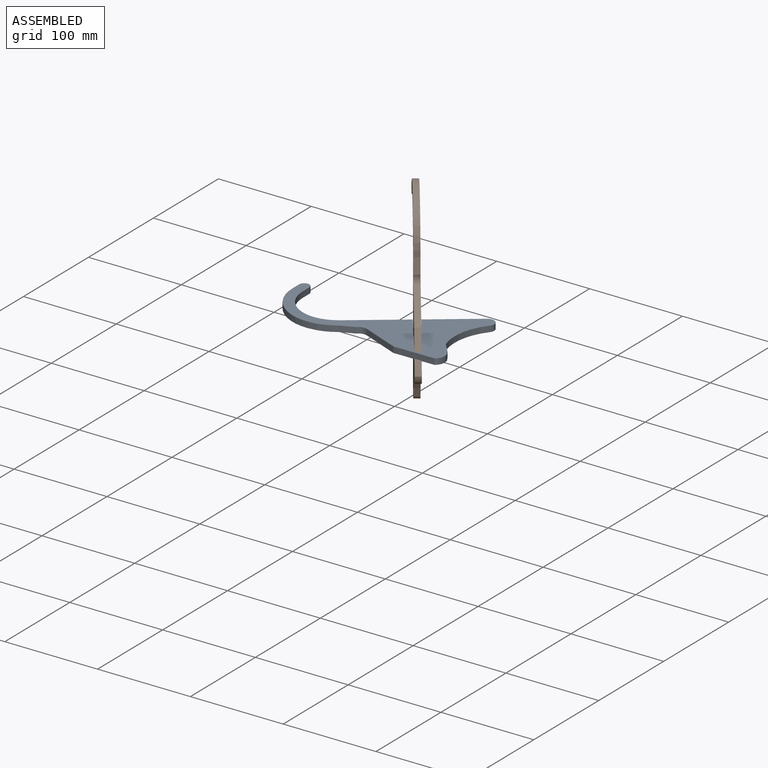
[diagram: assembled view]
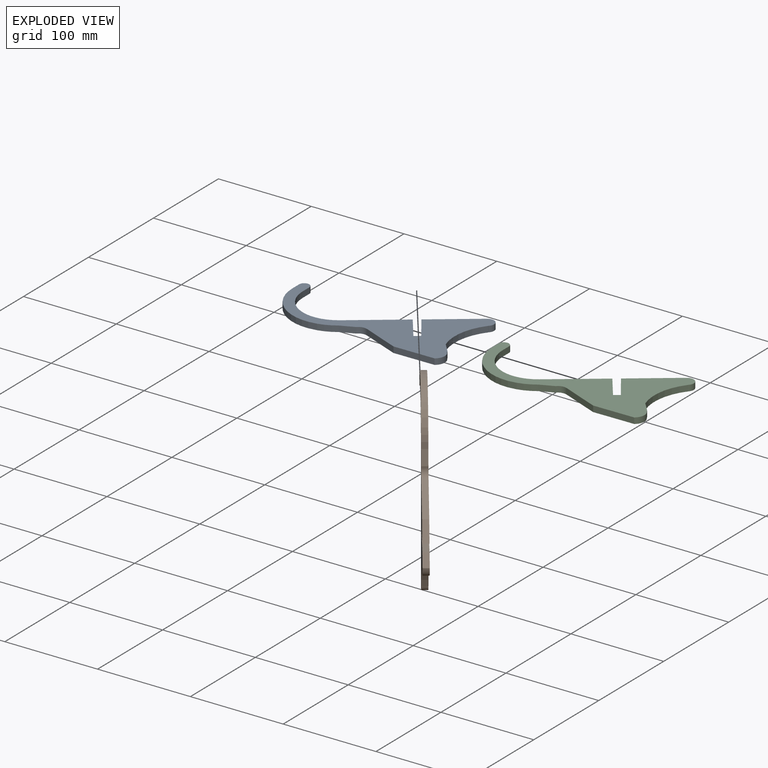
[diagram: exploded view]
GUIDED TOUR — MATED ASSEMBLY (Onshape document 1a7ba2416c0e4d4688dbf199, AutoMate assembly 1a7ba2416c0e4d4688dbf199_3245b46eb1ed6a3dad6c0e9d_c893f42f011314c6f7e1888d_default)

This assembly has 3 components, labeled P0..P2 below (a component is one placed occurrence of a part; the same part can appear more than once), held together by 1 mate. A mate is a constraint between two components; its type names the relative motion it leaves free:
  FASTENED — locks the two components together rigidly (no relative motion).
Axis/direction vectors are unit vectors and 'through' points are millimeter coordinates, both in the assembly's world frame.

MATES
  1. FASTENED "Fastened 2": P1 <-> P0, direction (0.588, -0.809, 0.000) through (27.16, -3.84, 41.88) mm

ASSEMBLY ORDER
  1. P0 — the base component [order heuristic]
  2. P2 — core [order heuristic]
  3. P1 [order verified]
Order-tag legend:
  [order verified] — this step's position reverses a verified removal order: the component was checked to insert without passing through the ones already placed.
  [order heuristic] — the first 2 components form the assembly's core: parts whose collision-free extraction could not be verified, listed in mate-graph order.

Of the 3 components, 3 carry the full construction recipe — the FeatureScript program that regenerates the part's solid from scratch; the rest are supplied as boundary geometry only.
Each toured component is shown spotlighted twice — in the assembled view, then in the exploded view, where a leader line traces a displaced component back to its assembled socket (saturated green if recipe-attached, orange if geometry-only; every other component desaturated gray) — followed by its recipe or geometry summary and the mates that hold it.
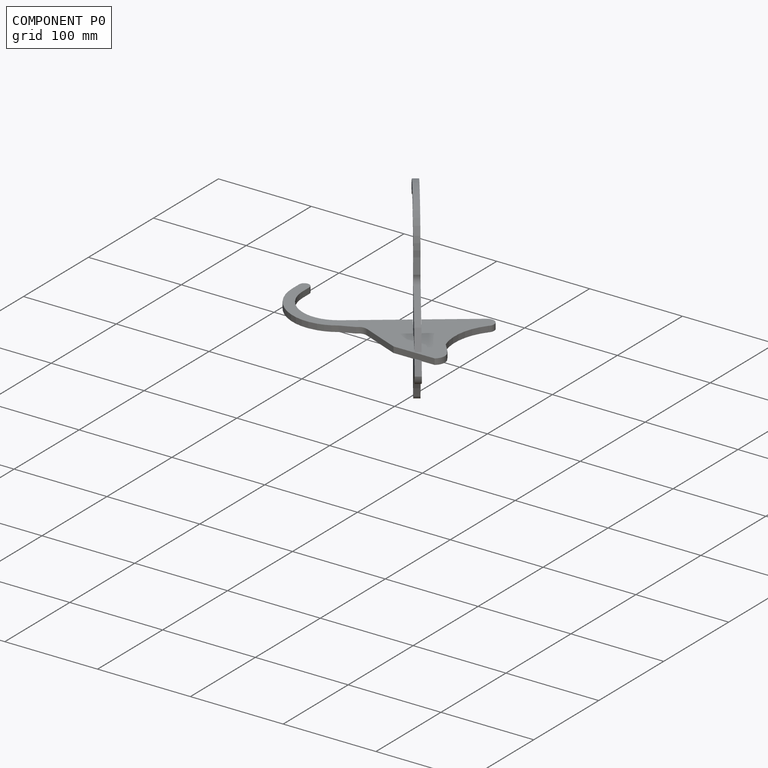
[diagram: component P0 — assembled]
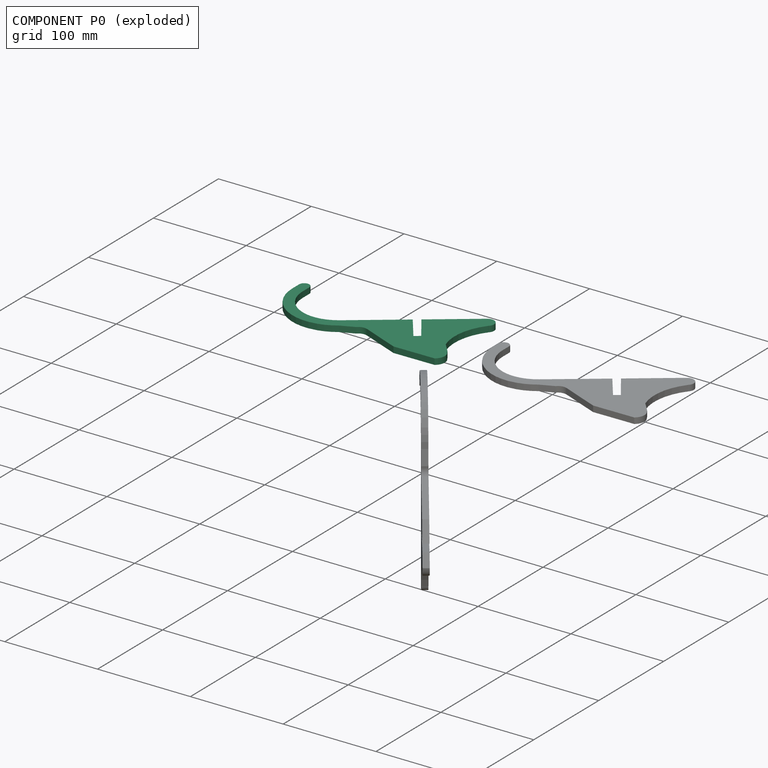
[diagram: component P0 — exploded]
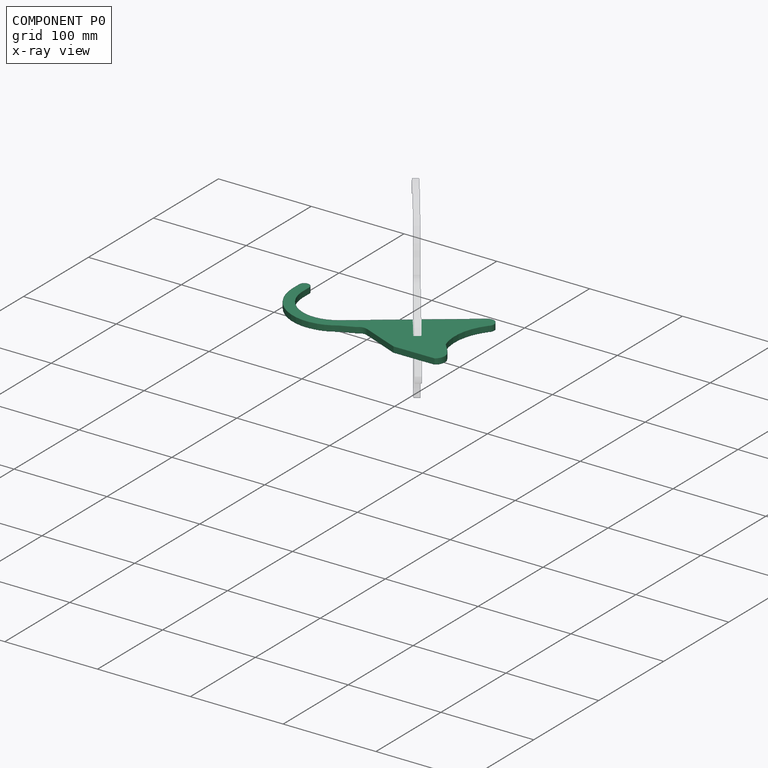
[diagram: component P0 — x-ray view]
COMPONENT P0 — recipe-attached (CADFS 00128273, mesh-verified: the recipe's output STEP matches this component's geometry to below the mesh-comparison resolution (tessellation chordal tolerance ~0.322 mm)).
Held by: FASTENED mate "Fastened 2" to P1.
Construction recipe (FeatureScript — the CAD program that rebuilds this solid; sketch coordinates are in the units given by the * unit suffixes, e.g. mm):

FeatureScript 1511;
import(path : "onshape/std/geometry.fs", version : "1511.0");
import(path : "onshape/std/common.fs", version : "1511.0");
const mm = millimeter;
const VERTEX = EntityType.VERTEX;
const EDGE = EntityType.EDGE;
const FACE = EntityType.FACE;
const BODY = EntityType.BODY;
function v(x, y){return vector(x, y);}
function OD(order){return orderDisambiguation(order);}
function OSD(set){return originalSetDisambiguation(set);}
function TD(topology){return topologyDisambiguation(topology);}
function TDD(query){return trueDependencyDisambiguation(query);}
function sQuery(a, b, c) {return sketchEntityQuery(a, b, c);}

annotation { "Feature Type Name" : "Feature", "Feature Type Description" : "" }
export const myFeature = defineFeature(function(context is Context, id is Id, definition is map)
    precondition{}
    {
        {
            var Q0;
            Q0=qCreatedBy(makeId("Top.planeOp"),FACE);
            var sketch = newSketch(context, id + "F0", { "sketchPlane" : qUnion([Q0])});
            skLineSegment(sketch, "E0.bottom", {"start": v(63.89, 45.37) * mm, "end": v(64.05, 45.37) * mm});
            skLineSegment(sketch, "E0.top", {"start": v(-34.23, -40.54) * mm, "end": v(-34.23, -40.54) * mm});
            skLineSegment(sketch, "E0.left", {"start": v(-112.23, 9.93) * mm, "end": v(-112.23, 0) * mm});
            skLineSegment(sketch, "E0.right", {"start": v(74.64, 35) * mm, "end": v(74.64, 34.95) * mm});
            skLineSegment(sketch, "E1", {"start": v(-101.22, 9.93) * mm, "end": v(-101.22, 0) * mm});
            skLineSegment(sketch, "E2", {"start": v(-13.16, -40.54) * mm, "end": v(-13.16, -42.96) * mm});
            skArc(sketch, "E3", {"start": v(-101.22, 9.93) * mm, "mid": v(-106.72, 15.44) * mm, "end": v(-112.23, 9.93) * mm});
            skArc(sketch, "E4", {"start": v(-101.22, 0) * mm, "mid": v(-80, -34.42) * mm, "end": v(-39.72, -30.93) * mm});
            skLineSegment(sketch, "E5", {"start": v(-34.23, -40.54) * mm, "end": v(-19.82, -34.3) * mm});
            skLineSegment(sketch, "E6", {"start": v(-13.16, -31.41) * mm, "end": v(-9.93, -32) * mm});
            skArc(sketch, "E7", {"start": v(74.64, 35) * mm, "mid": v(74.53, 45.49) * mm, "end": v(64.05, 45.37) * mm});
            skLineSegment(sketch, "E8", {"start": v(0, 0) * mm, "end": v(2.28, 0) * mm});
            skArc(sketch, "E9", {"start": v(75.09, 35.51) * mm, "mid": v(63.31, 9.8) * mm, "end": v(65.55, -18.4) * mm});
            skArc(sketch, "E10", {"start": v(-9.93, -32) * mm, "mid": v(-15.22, -31.65) * mm, "end": v(-19.82, -34.3) * mm});
            skArc(sketch, "E11", {"start": v(76.34, -31.6) * mm, "mid": v(75.62, -30.08) * mm, "end": v(74.64, -28.73) * mm});
            skLineSegment(sketch, "E12", {"start": v(74.64, -28.73) * mm, "end": v(65.55, -18.4) * mm});
            skLineSegment(sketch, "E13", {"start": v(-39.97, -31.11) * mm, "end": v(63.89, 45.37) * mm});
            skPoint(sketch, "E14.orphan", {"position": v(-13.16, 0) * mm});
            skArc(sketch, "E15.trimOffspring", {"start": v(-112.23, 0) * mm, "mid": v(-85.54, -43.95) * mm, "end": v(-34.23, -40.54) * mm});
            skLineSegment(sketch, "E16.trimOffspring", {"start": v(-111.22, 9.93) * mm, "end": v(-112.23, 9.93) * mm});
            skLineSegment(sketch, "E17", {"start": v(-52.06, -48.38) * mm, "end": v(-60.8, -49.5) * mm});
            skLineSegment(sketch, "E18", {"start": v(30.52, -48.64) * mm, "end": v(74.52, -48.23) * mm});
            skLineSegment(sketch, "E19", {"start": v(-9.93, -32) * mm, "end": v(30.52, -48.64) * mm});
            skArc(sketch, "E20", {"start": v(74.52, -48.23) * mm, "mid": v(79.07, -40.31) * mm, "end": v(76.34, -31.6) * mm});
            skSolve(sketch);
        }
        {
            var Q0;
            {var subQ4=sQuery(id+"F0.wireOp",EDGE,"E0.bottom");Q0=makeQuery(id+"F0.imprint","IMPRINT",FACE,{"disambiguationData":[TD([[makeQuery(id+"F0.imprint","IMPRINT",EDGE,{"derivedFrom":subQ4}),-1.0]])]});}
            extrude(context, id + "F1", {"entities" : qUnion([Q0]), "depth" : 6.35 * mm});
        }
        {
            var Q0;
            Q0=makeQuery(id+"F1.opExtrude","CAP_FACE",FACE,{"disambiguationData":[OSD([sQuery(id+"F0.wireOp",EDGE,"E0.bottom"),sQuery(id+"F0.wireOp",EDGE,"E0.top"),sQuery(id+"F0.wireOp",EDGE,"E0.left"),sQuery(id+"F0.wireOp",EDGE,"E0.right"),sQuery(id+"F0.wireOp",EDGE,"E1"),sQuery(id+"F0.wireOp",EDGE,"E3"),sQuery(id+"F0.wireOp",EDGE,"E4"),sQuery(id+"F0.wireOp",EDGE,"E5"),sQuery(id+"F0.wireOp",EDGE,"E7"),sQuery(id+"F0.wireOp",EDGE,"E9"),sQuery(id+"F0.wireOp",EDGE,"E10"),sQuery(id+"F0.wireOp",EDGE,"E11"),sQuery(id+"F0.wireOp",EDGE,"E12"),sQuery(id+"F0.wireOp",EDGE,"E13"),sQuery(id+"F0.wireOp",EDGE,"E15.trimOffspring"),sQuery(id+"F0.wireOp",EDGE,"E17"),sQuery(id+"F0.wireOp",EDGE,"E19"),sQuery(id+"F0.wireOp",EDGE,"E18"),sQuery(id+"F0.wireOp",EDGE,"E20")])],"isStart":false});
            var sketch = newSketch(context, id + "F2", { "sketchPlane" : qUnion([Q0])});
            skLineSegment(sketch, "E21", {"start": v(52.52, -48.44) * mm, "end": v(12.08, 7.22) * mm});
            skLineSegment(sketch, "E22", {"start": v(12.08, 7.22) * mm, "end": v(18.22, 11.74) * mm});
            skLineSegment(sketch, "E23", {"start": v(18.22, 11.74) * mm, "end": v(60.14, -48.36) * mm});
            skLineSegment(sketch, "E24", {"start": v(60.14, -48.36) * mm, "end": v(52.52, -48.44) * mm});
            skLineSegment(sketch, "E25", {"start": v(32.3, -20.6) * mm, "end": v(37.93, -16.52) * mm});
            skSolve(sketch);
        }
        {
            var Q0;
            {var subQ0=sQuery(id+"F2.wireOp",EDGE,"E22");Q0=makeQuery(id+"F2.imprint","IMPRINT",FACE,{"disambiguationData":[TD([[makeQuery(id+"F2.imprint","IMPRINT",EDGE,{"derivedFrom":subQ0}),-1.0]])]});}
            extrude(context, id + "F3", {"entities" : qUnion([Q0]), "operationType" : NewBodyOperationType.REMOVE, "endBound" : BoundingType.THROUGH_ALL, "oppositeDirection" : true, "depth" : 25.4 * mm});
        }
    });
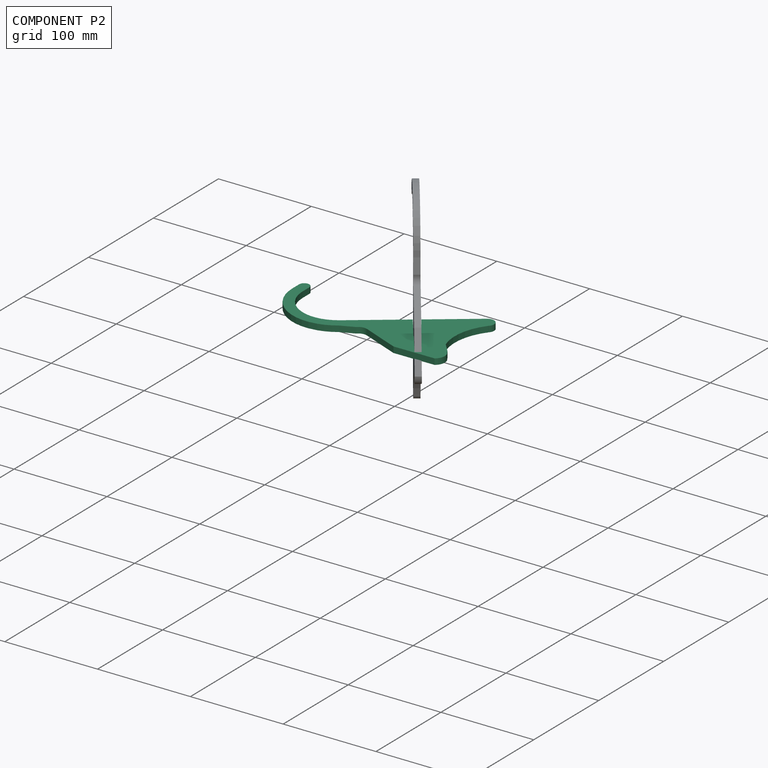
[diagram: component P2 — assembled]
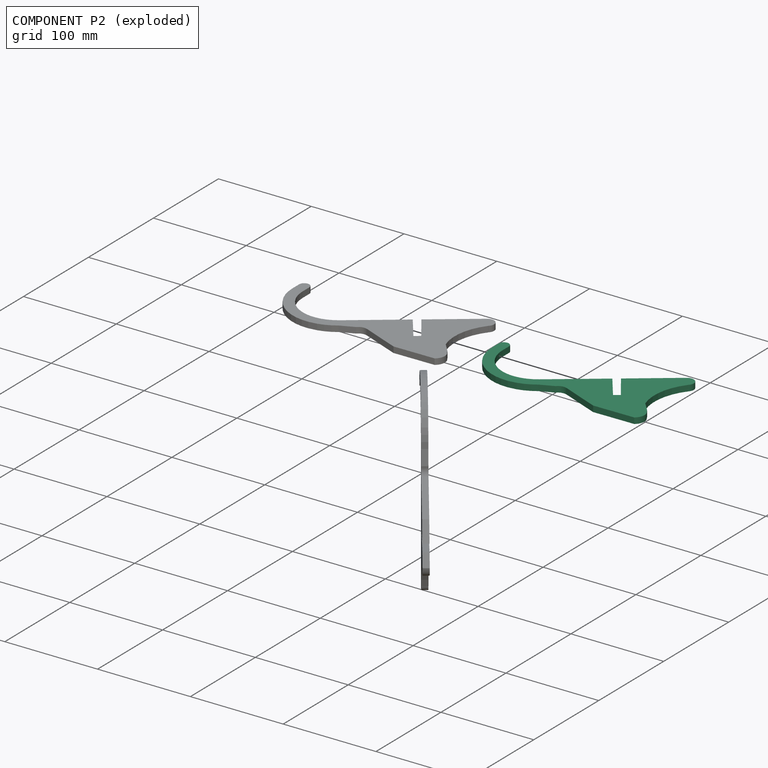
[diagram: component P2 — exploded]
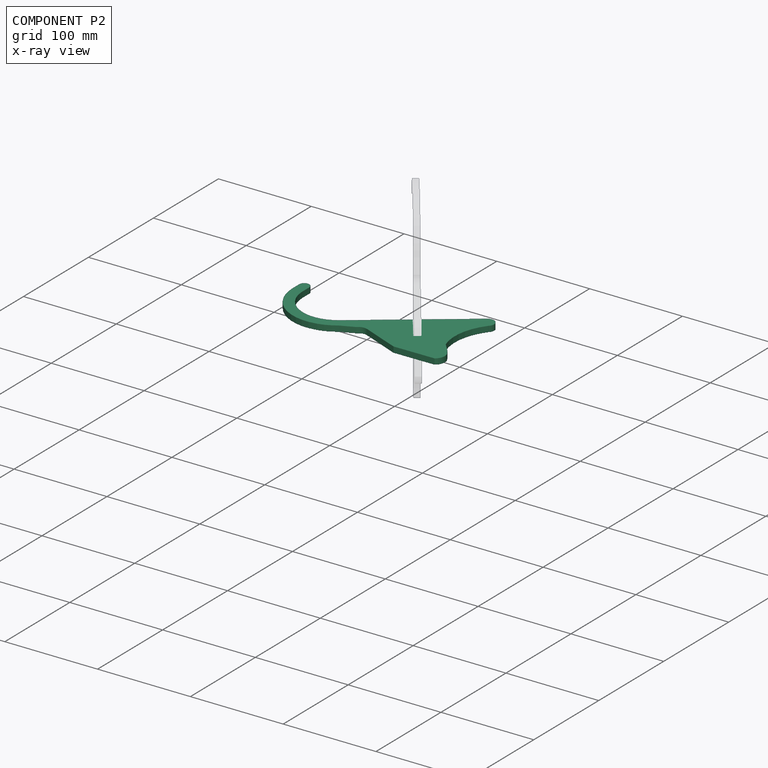
[diagram: component P2 — x-ray view]
COMPONENT P2 — same part as P0 (CADFS 00128273); its construction recipe is shown at P0.
Held by: no mates (free).
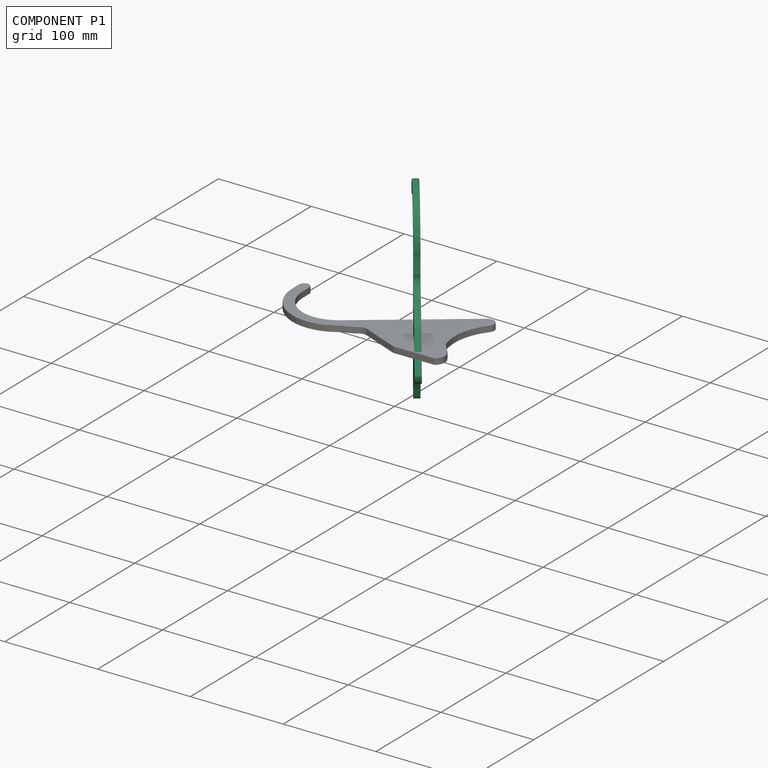
[diagram: component P1 — assembled]
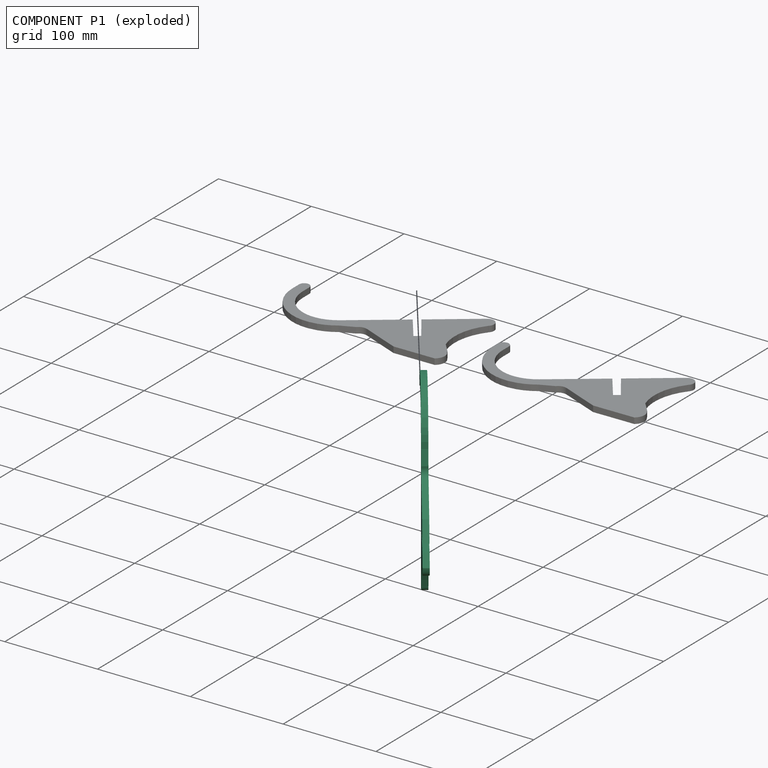
[diagram: component P1 — exploded]
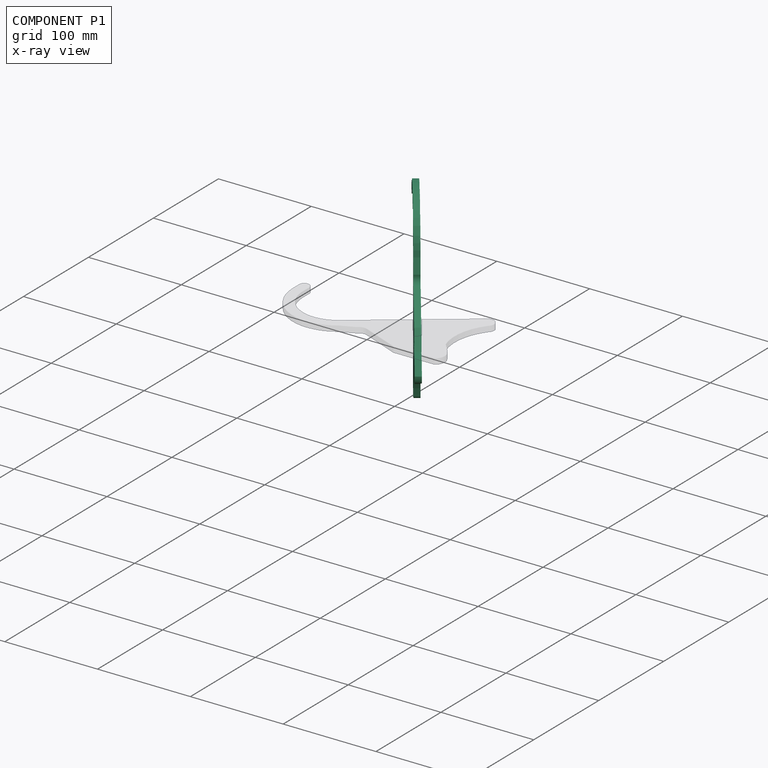
[diagram: component P1 — x-ray view]
COMPONENT P1 — recipe-attached (CADFS 00128273, mesh-verified: the recipe's output STEP matches this component's geometry to below the mesh-comparison resolution (tessellation chordal tolerance ~0.322 mm)).
Held by: FASTENED mate "Fastened 2" to P0.
Construction recipe (FeatureScript — the CAD program that rebuilds this solid; sketch coordinates are in the units given by the * unit suffixes, e.g. mm):

FeatureScript 1511;
import(path : "onshape/std/geometry.fs", version : "1511.0");
import(path : "onshape/std/common.fs", version : "1511.0");
const mm = millimeter;
const VERTEX = EntityType.VERTEX;
const EDGE = EntityType.EDGE;
const FACE = EntityType.FACE;
const BODY = EntityType.BODY;
function v(x, y){return vector(x, y);}
function OD(order){return orderDisambiguation(order);}
function OSD(set){return originalSetDisambiguation(set);}
function TD(topology){return topologyDisambiguation(topology);}
function TDD(query){return trueDependencyDisambiguation(query);}
function sQuery(a, b, c) {return sketchEntityQuery(a, b, c);}

annotation { "Feature Type Name" : "Feature", "Feature Type Description" : "" }
export const myFeature = defineFeature(function(context is Context, id is Id, definition is map)
    precondition{}
    {
        {
            var Q0;
            Q0=qCreatedBy(makeId("Top.planeOp"),FACE);
            var sketch = newSketch(context, id + "F0", { "sketchPlane" : qUnion([Q0])});
            skLineSegment(sketch, "E0.bottom", {"start": v(63.89, 45.37) * mm, "end": v(64.05, 45.37) * mm});
            skLineSegment(sketch, "E0.top", {"start": v(-34.23, -40.54) * mm, "end": v(-34.23, -40.54) * mm});
            skLineSegment(sketch, "E0.left", {"start": v(-112.23, 9.93) * mm, "end": v(-112.23, 0) * mm});
            skLineSegment(sketch, "E0.right", {"start": v(74.64, 35) * mm, "end": v(74.64, 34.95) * mm});
            skLineSegment(sketch, "E1", {"start": v(-101.22, 9.93) * mm, "end": v(-101.22, 0) * mm});
            skLineSegment(sketch, "E2", {"start": v(-13.16, -40.54) * mm, "end": v(-13.16, -42.96) * mm});
            skArc(sketch, "E3", {"start": v(-101.22, 9.93) * mm, "mid": v(-106.72, 15.44) * mm, "end": v(-112.23, 9.93) * mm});
            skArc(sketch, "E4", {"start": v(-101.22, 0) * mm, "mid": v(-80, -34.42) * mm, "end": v(-39.72, -30.93) * mm});
            skLineSegment(sketch, "E5", {"start": v(-34.23, -40.54) * mm, "end": v(-19.82, -34.3) * mm});
            skLineSegment(sketch, "E6", {"start": v(-13.16, -31.41) * mm, "end": v(-9.93, -32) * mm});
            skArc(sketch, "E7", {"start": v(74.64, 35) * mm, "mid": v(74.53, 45.49) * mm, "end": v(64.05, 45.37) * mm});
            skLineSegment(sketch, "E8", {"start": v(0, 0) * mm, "end": v(2.28, 0) * mm});
            skArc(sketch, "E9", {"start": v(75.09, 35.51) * mm, "mid": v(63.31, 9.8) * mm, "end": v(65.55, -18.4) * mm});
            skArc(sketch, "E10", {"start": v(-9.93, -32) * mm, "mid": v(-15.22, -31.65) * mm, "end": v(-19.82, -34.3) * mm});
            skArc(sketch, "E11", {"start": v(76.34, -31.6) * mm, "mid": v(75.62, -30.08) * mm, "end": v(74.64, -28.73) * mm});
            skLineSegment(sketch, "E12", {"start": v(74.64, -28.73) * mm, "end": v(65.55, -18.4) * mm});
            skLineSegment(sketch, "E13", {"start": v(-39.97, -31.11) * mm, "end": v(63.89, 45.37) * mm});
            skPoint(sketch, "E14.orphan", {"position": v(-13.16, 0) * mm});
            skArc(sketch, "E15.trimOffspring", {"start": v(-112.23, 0) * mm, "mid": v(-85.54, -43.95) * mm, "end": v(-34.23, -40.54) * mm});
            skLineSegment(sketch, "E16.trimOffspring", {"start": v(-111.22, 9.93) * mm, "end": v(-112.23, 9.93) * mm});
            skLineSegment(sketch, "E17", {"start": v(-52.06, -48.38) * mm, "end": v(-60.8, -49.5) * mm});
            skLineSegment(sketch, "E18", {"start": v(30.52, -48.64) * mm, "end": v(74.52, -48.23) * mm});
            skLineSegment(sketch, "E19", {"start": v(-9.93, -32) * mm, "end": v(30.52, -48.64) * mm});
            skArc(sketch, "E20", {"start": v(74.52, -48.23) * mm, "mid": v(79.07, -40.31) * mm, "end": v(76.34, -31.6) * mm});
            skSolve(sketch);
        }
        {
            var Q0;
            {var subQ4=sQuery(id+"F0.wireOp",EDGE,"E0.bottom");Q0=makeQuery(id+"F0.imprint","IMPRINT",FACE,{"disambiguationData":[TD([[makeQuery(id+"F0.imprint","IMPRINT",EDGE,{"derivedFrom":subQ4}),-1.0]])]});}
            extrude(context, id + "F1", {"entities" : qUnion([Q0]), "depth" : 6.35 * mm});
        }
        {
            var Q0;
            Q0=makeQuery(id+"F1.opExtrude","CAP_FACE",FACE,{"disambiguationData":[OSD([sQuery(id+"F0.wireOp",EDGE,"E0.bottom"),sQuery(id+"F0.wireOp",EDGE,"E0.top"),sQuery(id+"F0.wireOp",EDGE,"E0.left"),sQuery(id+"F0.wireOp",EDGE,"E0.right"),sQuery(id+"F0.wireOp",EDGE,"E1"),sQuery(id+"F0.wireOp",EDGE,"E3"),sQuery(id+"F0.wireOp",EDGE,"E4"),sQuery(id+"F0.wireOp",EDGE,"E5"),sQuery(id+"F0.wireOp",EDGE,"E7"),sQuery(id+"F0.wireOp",EDGE,"E9"),sQuery(id+"F0.wireOp",EDGE,"E10"),sQuery(id+"F0.wireOp",EDGE,"E11"),sQuery(id+"F0.wireOp",EDGE,"E12"),sQuery(id+"F0.wireOp",EDGE,"E13"),sQuery(id+"F0.wireOp",EDGE,"E15.trimOffspring"),sQuery(id+"F0.wireOp",EDGE,"E17"),sQuery(id+"F0.wireOp",EDGE,"E19"),sQuery(id+"F0.wireOp",EDGE,"E18"),sQuery(id+"F0.wireOp",EDGE,"E20")])],"isStart":false});
            var sketch = newSketch(context, id + "F2", { "sketchPlane" : qUnion([Q0])});
            skLineSegment(sketch, "E21", {"start": v(52.52, -48.44) * mm, "end": v(12.08, 7.22) * mm});
            skLineSegment(sketch, "E22", {"start": v(12.08, 7.22) * mm, "end": v(18.22, 11.74) * mm});
            skLineSegment(sketch, "E23", {"start": v(18.22, 11.74) * mm, "end": v(60.14, -48.36) * mm});
            skLineSegment(sketch, "E24", {"start": v(60.14, -48.36) * mm, "end": v(52.52, -48.44) * mm});
            skLineSegment(sketch, "E25", {"start": v(32.3, -20.6) * mm, "end": v(37.93, -16.52) * mm});
            skSolve(sketch);
        }
        {
            var Q0;
            {var subQ0=sQuery(id+"F2.wireOp",EDGE,"E22");Q0=makeQuery(id+"F2.imprint","IMPRINT",FACE,{"disambiguationData":[TD([[makeQuery(id+"F2.imprint","IMPRINT",EDGE,{"derivedFrom":subQ0}),-1.0]])]});}
            extrude(context, id + "F3", {"entities" : qUnion([Q0]), "operationType" : NewBodyOperationType.REMOVE, "endBound" : BoundingType.THROUGH_ALL, "oppositeDirection" : true, "depth" : 25.4 * mm});
        }
    });
PROVENANCE & LICENSES
Assembly (occurrences, transforms, mates, per-part STEP geometry): AutoMate dataset, Zenodo record 7776208, CC0.
Construction recipes: CADFS (HuggingFace VladPyatov/CADFS, CC-BY-4.0, layered over the ABC dataset), FeatureScript reconstruction programs keyed by ABC model id.
Join: ABC meta listings map ABC model id -> Onshape documentId; within a shared document, parts are matched by geometric signature (bounding-box dims + volume at 0.1% relative tolerance, exact B-rep face/solid counts).
Verification: 3 of this assembly's 3 components carry a recipe attachment, and every attachment is mesh-verified: the CADFS STEP and the AutoMate member STEP were compared as meshes in their shared local frame (symmetric sampled-point-to-mesh distance); worst across the 3 attachments: below the mesh-comparison resolution (tessellation chordal tolerance ~0.322 mm) on a 215 mm part.
Renders: orthographic iso camera (az 35 / el 25); the floor grid conveys scale (grid pitch printed in each image; no ruler). In the exploded view each component is displaced by its stored offset vector: the offsets alone carry the explosion direction (mate normal/axis signs are not orientation cues and do not encode it), and separation distances are assigned per mate-chain, not proportionally to assembly-order depth.
